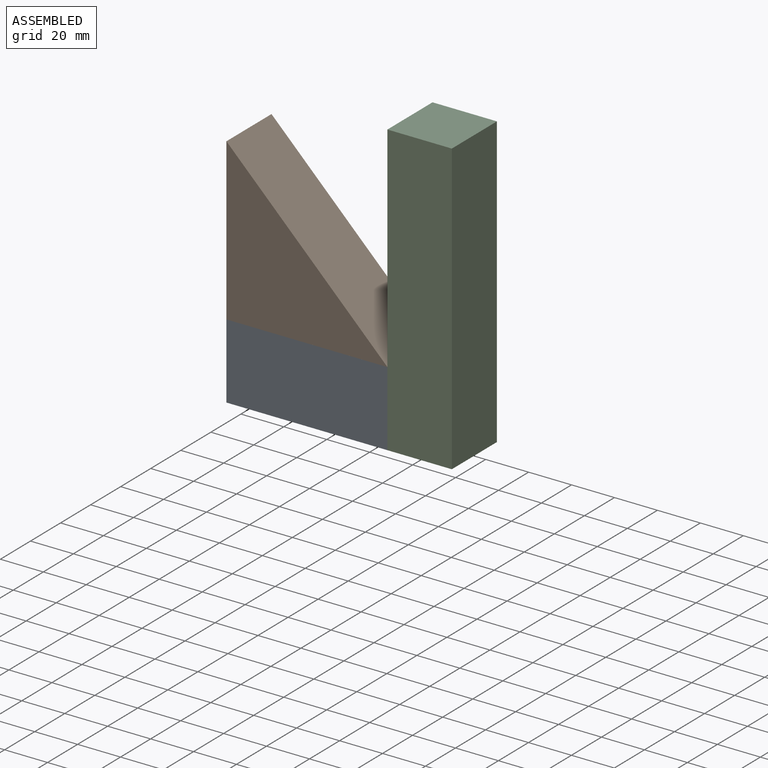
[diagram: assembled view]
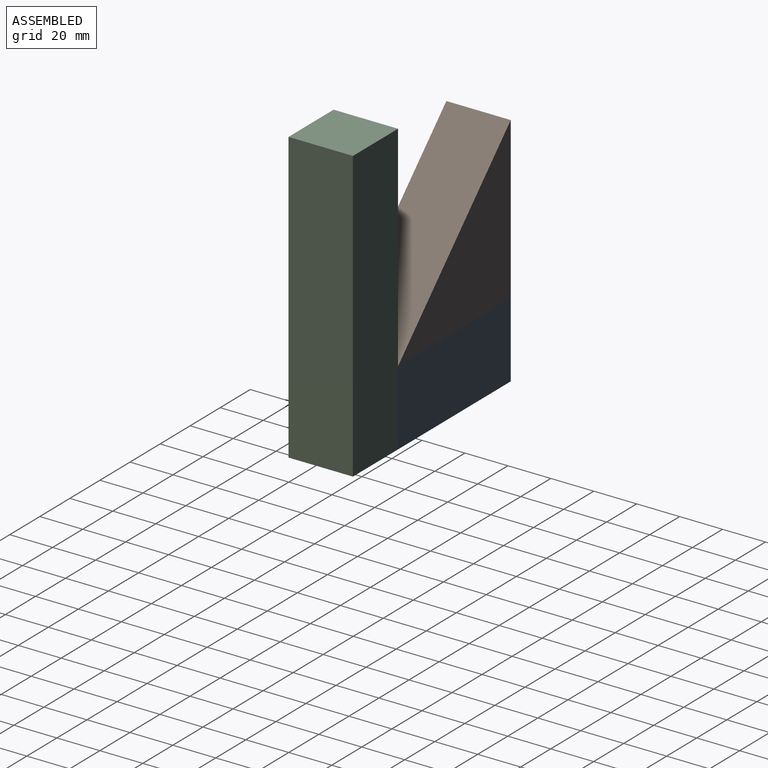
[diagram: assembled view, second angle]
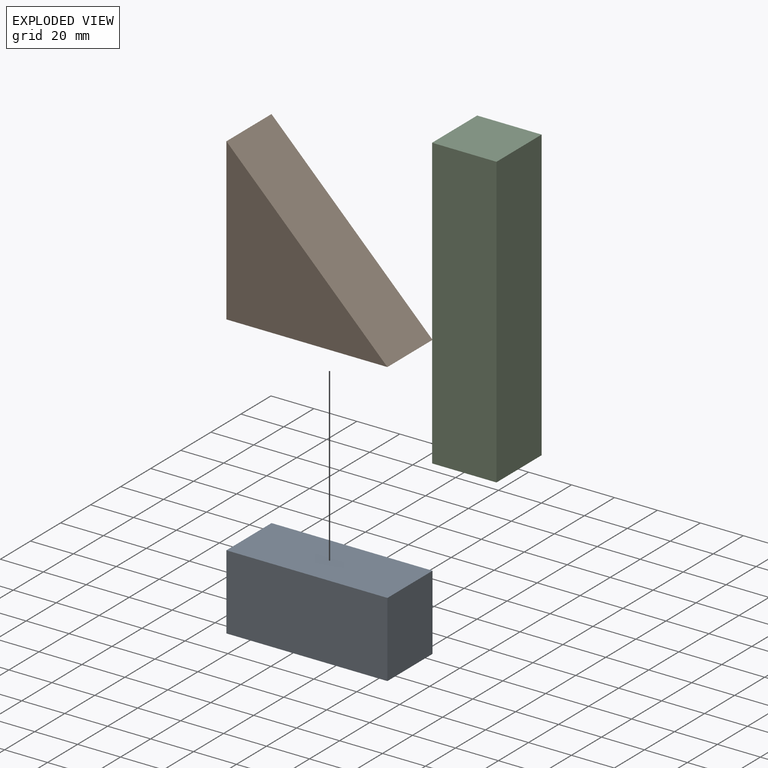
[diagram: exploded view]
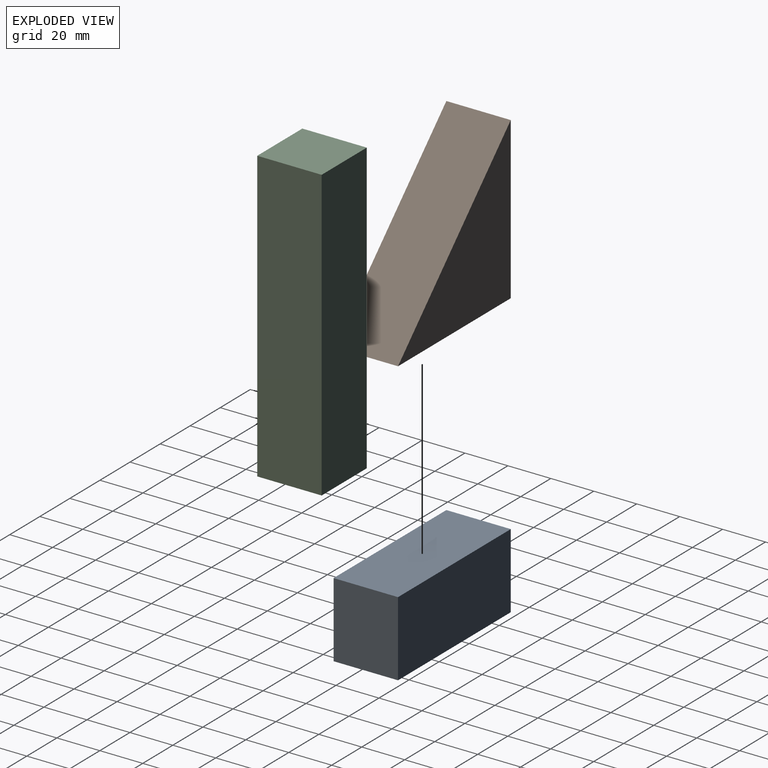
[diagram: exploded view, second angle]
ASSEMBLY  parts=3 mates=4
PART A: 6 faces, bbox 75x30x35 mm
  f0: plane 75x30mm, normal (0,0,1), area 2250mm2, adj f1,f3,f4,f5
  f1: plane 35x30mm, normal (-1,0,0), area 1050mm2, adj f0,f2,f4,f5
  f2: plane 75x30mm, normal (0,0,-1), area 2250mm2, adj f1,f3,f4,f5
  f3: plane 35x30mm, normal (1,0,0), area 1050mm2, adj f0,f2,f4,f5
  f4: plane 75x35mm, normal (0,-1,0), area 2625mm2, adj f0,f1,f2,f3
  f5: plane 75x35mm, normal (0,1,0), area 2625mm2, adj f0,f1,f2,f3
PART B: 5 faces, bbox 75x30x75 mm
  f0: plane 75x75mm, normal (0.71,0,0.71), area 3182mm2, adj f1,f2,f3,f4
  f1: plane 75x30mm, normal (-1,0,0), area 2250mm2, adj f0,f2,f3,f4
  f2: plane 75x30mm, normal (0,0,-1), area 2250mm2, adj f0,f1,f3,f4
  f3: plane 75x75mm, normal (0,-1,0), area 2812.5mm2, adj f0,f1,f2
  f4: plane 75x75mm, normal (0,1,0), area 2812.5mm2, adj f0,f1,f2
PART C: 6 faces, bbox 30x30x135 mm
  f0: plane 30x30mm, normal (0,0,1), area 900mm2, adj f1,f3,f4,f5
  f1: plane 135x30mm, normal (-1,0,0), area 4050mm2, adj f0,f2,f4,f5
  f2: plane 30x30mm, normal (0,0,-1), area 900mm2, adj f1,f3,f4,f5
  f3: plane 135x30mm, normal (1,0,0), area 4050mm2, adj f0,f2,f4,f5
  f4: plane 135x30mm, normal (0,-1,0), area 4050mm2, adj f0,f1,f2,f3
  f5: plane 135x30mm, normal (0,1,0), area 4050mm2, adj f0,f1,f2,f3
PLACE A t=(5.56,0,-29.49)mm
PLACE B t=(-2.5,0,5)mm
PLACE C t=(69.03,0,4.58)mm
MATE planar C.f1 <-> A.f3  axis (-1,0,0) through (47.3,-15,9)mm
MATE planar A.f0 <-> B.f2  axis (0,0,1) through (9.8,-15,-23.5)mm
MATE planar B.f1 <-> A.f1  axis (-1,0,0) through (-27.7,-15,14)mm
MATE planar A.f2 <-> C.f2  axis (0,0,-1) through (9.8,-15,-58.5)mm
